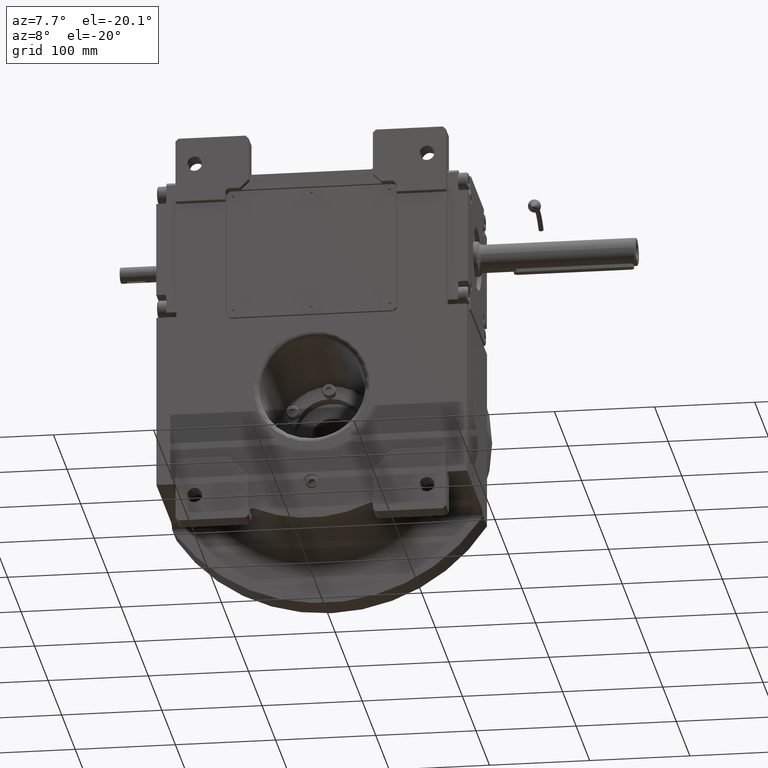
[diagram: clean part render]
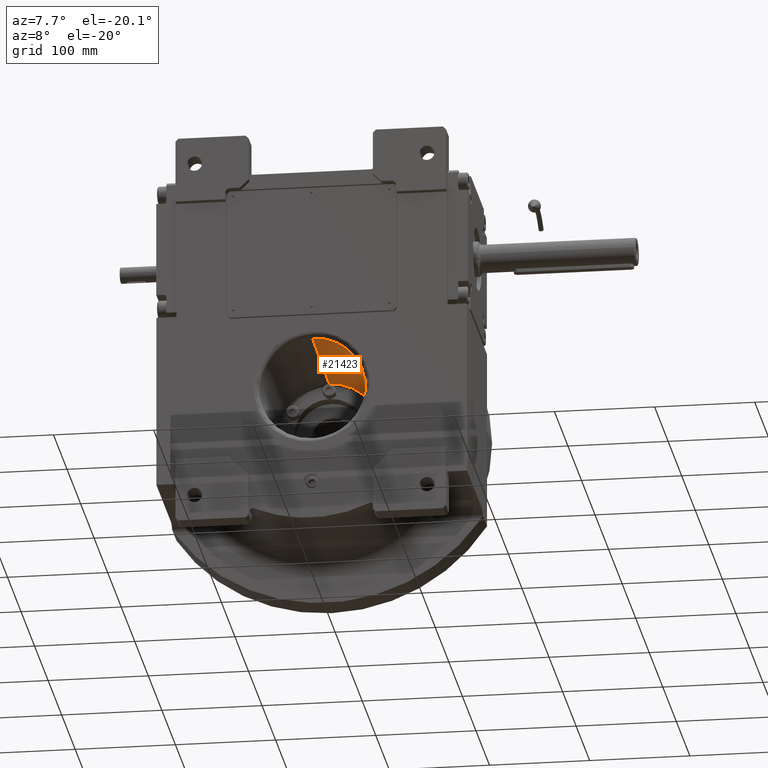
[diagram: same view with one face highlighted and labeled with its STEP entity id]
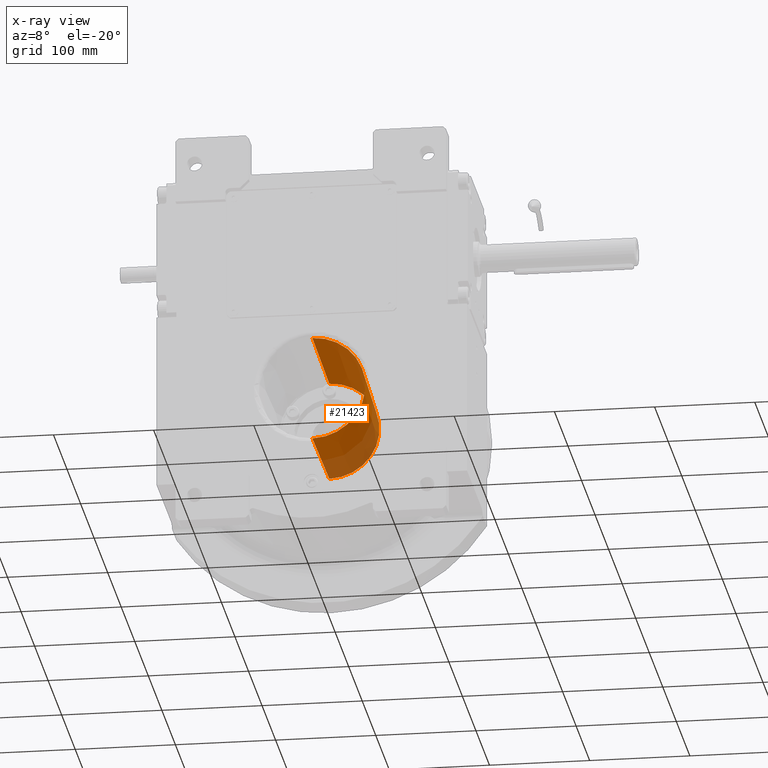
[diagram: x-ray of the same camera — body ghosted, the highlighted face saturated]
A machine part, auxiliary view. The second image highlights one B-rep face of the part: STEP entity #21423.
The next image is the same camera in x-ray: the body ghosted, the highlighted face saturated — about 29% of this face is hidden behind the body in this view.
In plain terms, the highlighted conical surface has half-angle 1.292 deg.
Its self-contained STEP definition (entity closure, byte-faithful):
#1726 = VERTEX_POINT ( 'NONE', #61641 ) ;
#2677 = ORIENTED_EDGE ( 'NONE', *, *, #4993, .F. ) ;
#3052 = DIRECTION ( 'NONE',  ( 0.000000000000000000, 0.000000000000000000, 1.000000000000000000 ) ) ;
#4993 = EDGE_CURVE ( 'NONE', #58343, #50344, #17768, .T. ) ;
#5808 = CARTESIAN_POINT ( 'NONE',  ( -1.295425538949331941E-14, -68.11275327462179519, 52.88976135205919604 ) ) ;
#7661 = DIRECTION ( 'NONE',  ( 0.9817544671349441865, 1.960699413717118186E-08, -0.1901530074981230556 ) ) ;
#8356 = CARTESIAN_POINT ( 'NONE',  ( -3.366447261396295104E-11, -68.11275327462200835, 52.88976135205919604 ) ) ;
#12996 = CARTESIAN_POINT ( 'NONE',  ( 5.632922360699180090E-12, 57.06765196477320501, -50.06614318876450653 ) ) ;
#13003 = DIRECTION ( 'NONE',  ( -2.310691404686089221E-08, 0.9999999999999997780, -1.490116125507999888E-08 ) ) ;
#17020 = ORIENTED_EDGE ( 'NONE', *, *, #25557, .T. ) ;
#17176 = LINE ( 'NONE', #5808, #59677 ) ;
#17646 = DIRECTION ( 'NONE',  ( 0.9882587857891660388, 2.055887273401757417E-08, -0.1527893069246760438 ) ) ;
#17768 = CIRCLE ( 'NONE', #56530, 52.88976140256119152 ) ;
#17977 = ORIENTED_EDGE ( 'NONE', *, *, #28483, .F. ) ;
#21402 = AXIS2_PLACEMENT_3D ( 'NONE', #40163, #67993, #3052 ) ;
#21423 = ADVANCED_FACE ( 'NONE', ( #51945 ), #29341, .F. ) ;
#25342 = EDGE_LOOP ( 'NONE', ( #31720, #17020, #17977, #2677 ) ) ;
#25557 = EDGE_CURVE ( 'NONE', #1726, #57023, #40986, .T. ) ;
#27967 = LINE ( 'NONE', #33317, #48166 ) ;
#28483 = EDGE_CURVE ( 'NONE', #50344, #57023, #27967, .T. ) ;
#28492 = AXIS2_PLACEMENT_3D ( 'NONE', #45108, #67572, #7661 ) ;
#29341 = CONICAL_SURFACE ( 'NONE', #21402, 1.000000000000000000, 0.02255256665030591981 ) ;
#31720 = ORIENTED_EDGE ( 'NONE', *, *, #38827, .T. ) ;
#32276 = DIRECTION ( 'NONE',  ( -2.761658737181604074E-18, 0.9997457016474147196, 0.02255065492437784494 ) ) ;
#33317 = CARTESIAN_POINT ( 'NONE',  ( 6.477127694746659705E-15, -68.11275327462179519, -52.88976135205919604 ) ) ;
#38827 = EDGE_CURVE ( 'NONE', #58343, #1726, #17176, .T. ) ;
#40163 = CARTESIAN_POINT ( 'NONE',  ( 0.000000000000000000, 2232.333333333314840, -3.962844522719785252E-13 ) ) ;
#40986 = CIRCLE ( 'NONE', #28492, 50.06614321695208503 ) ;
#41294 = CARTESIAN_POINT ( 'NONE',  ( 3.366158563859759886E-11, -68.11275327462200835, -52.88976135205919604 ) ) ;
#45108 = CARTESIAN_POINT ( 'NONE',  ( -3.083077640091004570E-08, 57.06765196477320501, 2.539432025222259547E-15 ) ) ;
#48166 = VECTOR ( 'NONE', #32276, 1000.000000000000114 ) ;
#50344 = VERTEX_POINT ( 'NONE', #41294 ) ;
#51945 = FACE_OUTER_BOUND ( 'NONE', #25342, .T. ) ;
#55718 = DIRECTION ( 'NONE',  ( 5.523317474363207377E-18, 0.9997457016474147196, -0.02255065492437819882 ) ) ;
#55841 = CARTESIAN_POINT ( 'NONE',  ( -5.180071170158429987E-08, -68.11275406274060629, 3.434346457190809174E-14 ) ) ;
#56530 = AXIS2_PLACEMENT_3D ( 'NONE', #55841, #13003, #17646 ) ;
#57023 = VERTEX_POINT ( 'NONE', #12996 ) ;
#58343 = VERTEX_POINT ( 'NONE', #8356 ) ;
#59677 = VECTOR ( 'NONE', #55718, 1000.000000000000114 ) ;
#61641 = CARTESIAN_POINT ( 'NONE',  ( -5.647091595521470526E-12, 57.06765196477320501, 50.06614318876450653 ) ) ;
#67572 = DIRECTION ( 'NONE',  ( -1.997138262491069651E-08, 0.9999999999999997780, -6.123233971614118157E-17 ) ) ;
#67993 = DIRECTION ( 'NONE',  ( 0.000000000000000000, -1.000000000000000000, 1.836909530733564901E-16 ) ) ;